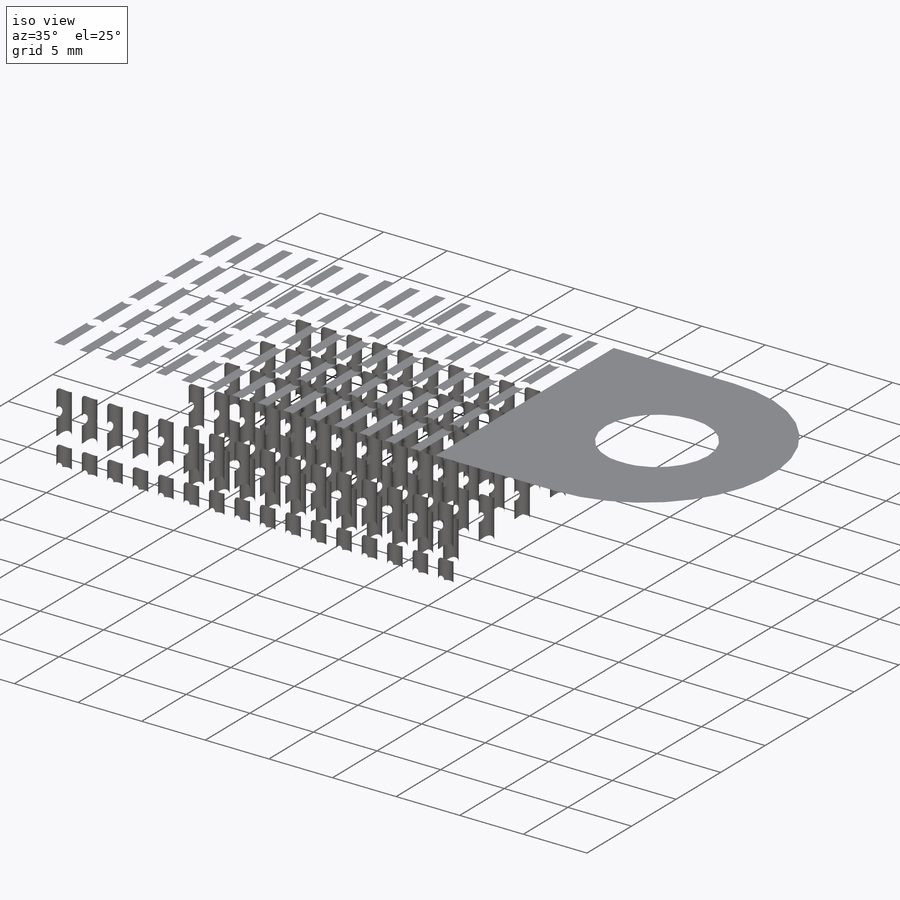
[diagram: iso view]
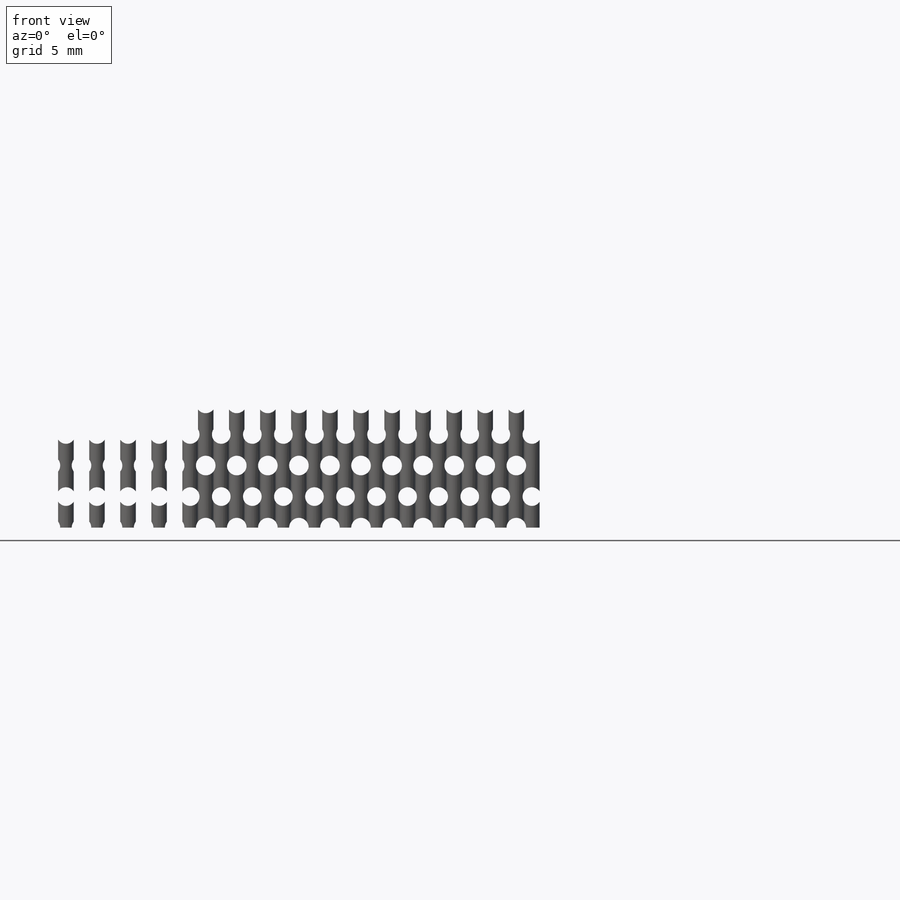
[diagram: front view]
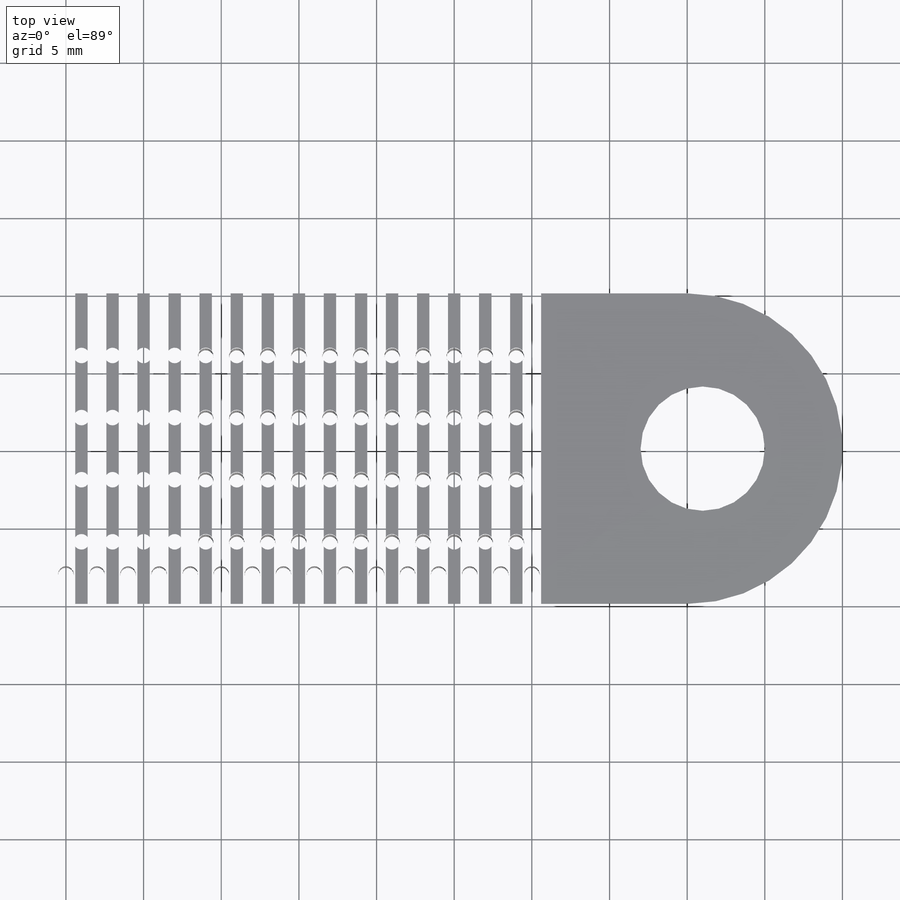
[diagram: top view]
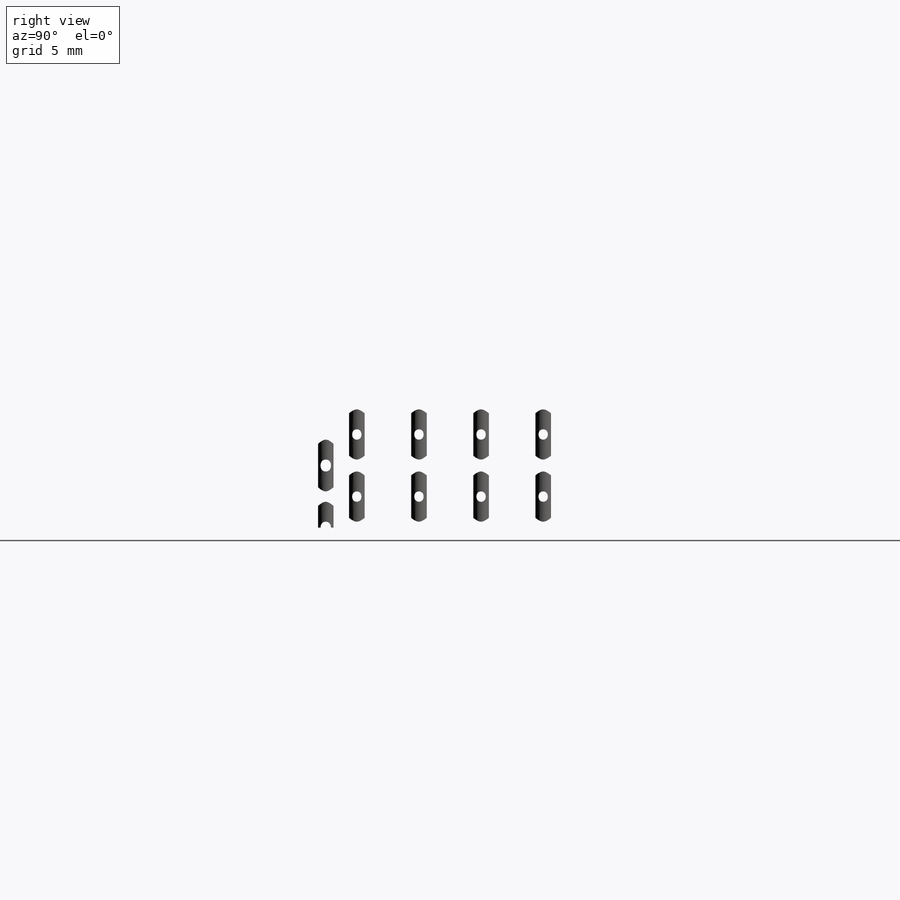
[diagram: right view]
SOLIDWORKS PART (.sldprt)
format: sldprt  version: not decoded by parser v0  size: 2,828,288 bytes
history: native  units: mm
features: sketch x10, pattern_linear x6, cut_extrude x5, extrude x3, material x1 (+13 scaffold rows collapsed)
feature tree (38):
  scaffold x13  (default folders/planes/origin — collapsed)
  material  "Material <not specified>"
  sketch  "Sketch3"  dims[D1=20.0mm D2=50.0mm]
  extrude  "Boss-Extrude1"  Depth=10mm
  sketch  "Sketch4"  dims[D1=~9.484417mm]
  extrude  "Boss-Extrude2"  Depth=10mm
  sketch  "Sketch5"  dims[D1=~10.838479mm]
  extrude  "Boss-Extrude3"  Depth=10mm
  sketch  "Sketch6"  dims[D1=2.0mm]
  cut_extrude  "Cut-Extrude1"  [1 undecoded]
  pattern_linear  "LPattern1"  Count1=2 Count2=1 Spacing1=53mm Spacing2=10mm
  sketch  "Sketch7"  dims[D1=1.0mm]
  cut_extrude  "Cut-Extrude2"  [1 undecoded]
  pattern_linear  "LPattern2"  Count1=17 Count2=1 Spacing1=2mm Spacing2=10mm
  sketch  "Sketch8"  dims[D1=1.0mm]
  sketch  "Sketch10"
  sketch  "Sketch11"  dims[D1=~1.459605mm]
  cut_extrude  "Cut-Extrude3"  [1 undecoded]
  pattern_linear  "LPattern7"  Count1=16 Count2=4 Spacing1=2mm Spacing2=4mm
  sketch  "Sketch15"  dims[D1=~0.632849mm]
  cut_extrude  "Cut-Extrude5"  Depth=20mm
  pattern_linear  "LPattern8"  Count1=16 Count2=4 Spacing1=2mm Spacing2=4mm
  sketch  "Sketch16"  dims[D1=~0.802144mm]
  cut_extrude  "Cut-Extrude6"  Depth=20mm
  pattern_linear  "LPattern9"  Count1=16 Count2=3 Spacing1=2mm Spacing2=4mm
  pattern_linear  "LPattern10"  Count1=16 Count2=5 Spacing1=2mm Spacing2=4mm
decode coverage: 20 of 24 modeling features carry decoded parameters
note: ~ marks probable driven/reference dimensions
note: 3 parameter values undecoded
summary: no parameter record found for 3 features
note: suppression state not decoded; provenance and decode notes live in map.json
